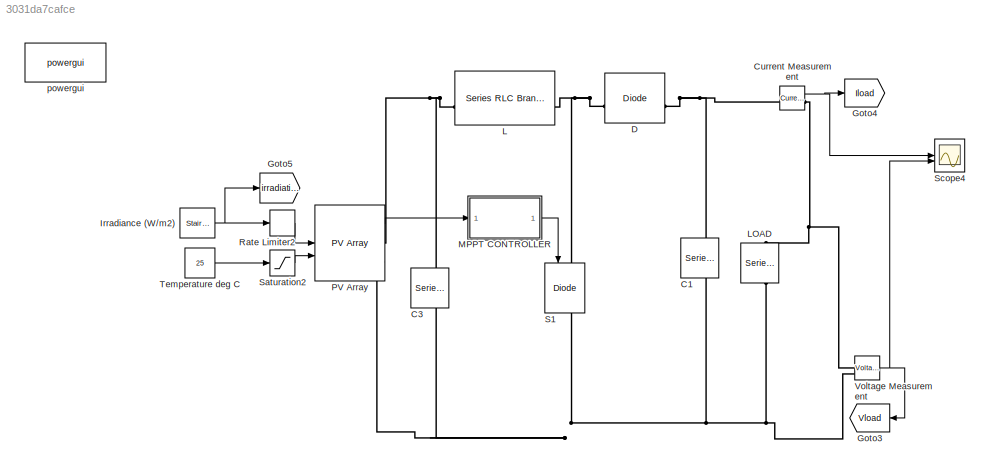
MODEL slx_3031da7cafce
KIND model
CONFIG AbsTol = auto
CONFIG EnableMultiTasking = off
CONFIG FixedStep = auto
CONFIG MaxStep = auto
CONFIG MinStep = auto
CONFIG PreLoadFcn = Ts_Power=50e-6;\nTs_Control=100e-6;
CONFIG RelTol = 1e-3
CONFIG SampleTimeConstraint = Unconstrained
CONFIG SolverName = VariableStepAuto
CONFIG StartTime = 0.0
CONFIG StopTime = 10.0
BLOCK [Reference] C1  REF=spsSeriesRLCBranchLib/Series RLC Branch
  LibrarySourceBlock = sps_lib/Passives/Series RLC Branch
  NameLocation = left
  SourceBlock = spsSeriesRLCBranchLib/Series RLC Branch
  SourceType = Series RLC Branch
BLOCK [Reference] C3  REF=spsSeriesRLCBranchLib/Series RLC Branch
  LibrarySourceBlock = sps_lib/Passives/Series RLC Branch
  NameLocation = left
  SourceBlock = spsSeriesRLCBranchLib/Series RLC Branch
  SourceType = Series RLC Branch
BLOCK [Reference] Current Measurement  REF=spsCurrentMeasurementLib/Current Measurement
  LibrarySourceBlock = sps_lib/Sensors and Measurements/Current Measurement
  SourceBlock = spsCurrentMeasurementLib/Current Measurement
  SourceType = Current Measurement
  UserDataPersistent = on
BLOCK [Reference] D  REF=spsDiodeLib/Diode
  LibrarySourceBlock = sps_lib/Power Electronics/Diode
  SourceBlock = spsDiodeLib/Diode
  SourceType = Diode
BLOCK [Goto] Goto3
  GotoTag = Vload
  TagVisibility = global
BLOCK [Goto] Goto4
  GotoTag = Iload
  TagVisibility = global
BLOCK [Goto] Goto5
  GotoTag = irradiation
  TagVisibility = global
BLOCK [Reference] Irradiance (W//m2)  REF=spsStairGeneratorLib/Stair
Generator
  LibrarySourceBlock = sps_lib/Sources/Signal Generator Sources/Stair\nGenerator
  NameLocation = top
  SourceBlock = spsStairGeneratorLib/Stair\nGenerator
  SourceType = Stair Generator
BLOCK [Reference] L  REF=spsSeriesRLCBranchLib/Series RLC Branch
  LibrarySourceBlock = sps_lib/Passives/Series RLC Branch
  SourceBlock = spsSeriesRLCBranchLib/Series RLC Branch
  SourceType = Series RLC Branch
BLOCK [Reference] LOAD  REF=spsSeriesRLCBranchLib/Series RLC Branch
  LibrarySourceBlock = sps_lib/Passives/Series RLC Branch
  NameLocation = left
  SourceBlock = spsSeriesRLCBranchLib/Series RLC Branch
  SourceType = Series RLC Branch
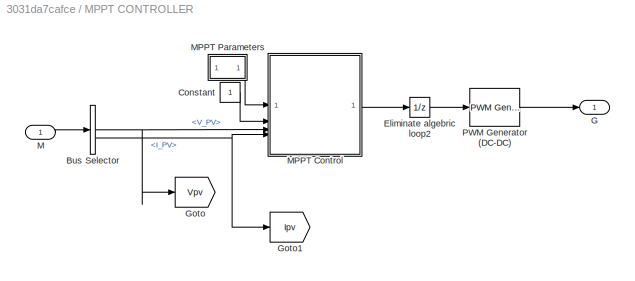
BLOCK [SubSystem] MPPT CONTROLLER
BLOCK [BusSelector] MPPT CONTROLLER/Bus Selector
  OutputSignals = V_PV,I_PV
BLOCK [Constant] MPPT CONTROLLER/Constant
BLOCK [UnitDelay] MPPT CONTROLLER/Eliminate algebric loop2
  HasFrameUpgradeWarning = on
  InitialCondition = 0.485
  NameLocation = top
  SampleTime = Ts_Control
BLOCK [Outport] MPPT CONTROLLER/G
  VectorParamsAs1DForOutWhenUnconnected = off
BLOCK [Goto] MPPT CONTROLLER/Goto
  GotoTag = Vpv
  TagVisibility = global
BLOCK [Goto] MPPT CONTROLLER/Goto1
  GotoTag = Ipv
  TagVisibility = global
BLOCK [Inport] MPPT CONTROLLER/M
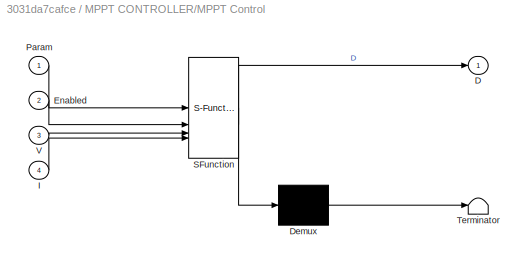
BLOCK [SubSystem] MPPT CONTROLLER/MPPT Control  
  ErrorFcn = Stateflow.Translate.translate
  NameLocation = top
  PermitHierarchicalResolution = ExplicitOnly
  SFBlockType = MATLAB Function
  TreatAsAtomicUnit = on
BLOCK [Demux] MPPT CONTROLLER/MPPT Control  / Demux 
  Outputs = 1
BLOCK [S-Function] MPPT CONTROLLER/MPPT Control  / SFunction 
  EnableBusSupport = on
  FunctionName = sf_sfun
  PortCounts = [4 2]
  SFcnIsStateOwnerBlock = off
  SFunctionDeploymentMode = off
  Tag = Stateflow S-Function 4
BLOCK [Terminator] MPPT CONTROLLER/MPPT Control  / Terminator 
BLOCK [Outport] MPPT CONTROLLER/MPPT Control  /D
  VectorParamsAs1DForOutWhenUnconnected = off
BLOCK [Inport] MPPT CONTROLLER/MPPT Control  /Enabled
  Port = 2
BLOCK [Inport] MPPT CONTROLLER/MPPT Control  /I
  Port = 4
BLOCK [Inport] MPPT CONTROLLER/MPPT Control  /Param
BLOCK [Inport] MPPT CONTROLLER/MPPT Control  /V
  Port = 3
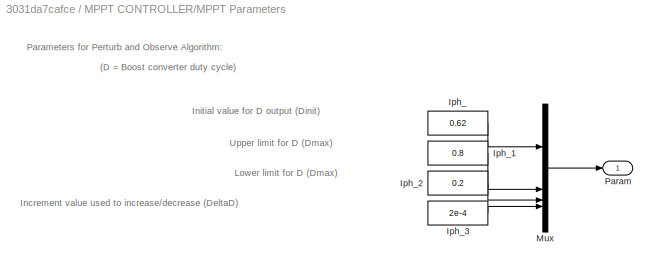
BLOCK [SubSystem] MPPT CONTROLLER/MPPT Parameters
  NameLocation = top
BLOCK [Constant] MPPT CONTROLLER/MPPT Parameters/Iph_
  Value = 0.62
BLOCK [Constant] MPPT CONTROLLER/MPPT Parameters/Iph_1
  Value = 0.8
BLOCK [Constant] MPPT CONTROLLER/MPPT Parameters/Iph_2
  Value = 0.2
BLOCK [Constant] MPPT CONTROLLER/MPPT Parameters/Iph_3
  Value = 2e-4
BLOCK [Mux] MPPT CONTROLLER/MPPT Parameters/Mux
  DisplayOption = bar
BLOCK [Outport] MPPT CONTROLLER/MPPT Parameters/Param
  VectorParamsAs1DForOutWhenUnconnected = off
BLOCK [Reference] MPPT CONTROLLER/PWM Generator (DC-DC)  REF=spsPWMGeneratorDCDCLib/PWM Generator
(DC-DC)
  LibrarySourceBlock = sps_lib/Power Electronics/Power Electronics Control/PWM Generator\n(DC-DC)
  SourceBlock = spsPWMGeneratorDCDCLib/PWM Generator\n(DC-DC)
  SourceType = PWM Generator (DC-DC)
BLOCK [Reference] PV Array  REF=spsPVArrayLib/PV Array
  LibrarySourceBlock = sps_lib/Sources/PV Array
  SourceBlock = spsPVArrayLib/PV Array
  SourceType = PV array
BLOCK [RateLimiter] Rate Limiter2
  FallingSlewLimit = -8000
  InitialCondition = 1000
  NameLocation = top
  RisingSlewLimit = 8000
  SampleTimeMode = inherited
BLOCK [Reference] S1  REF=spsIGBTDiodeLib/IGBT//Diode
  LibrarySourceBlock = sps_lib/Power Electronics/IGBT//Diode
  NameLocation = left
  SourceBlock = spsIGBTDiodeLib/IGBT//Diode
  SourceType = IGBT/Diode
BLOCK [Saturate] Saturation2
  LowerLimit = 5
  UpperLimit = 55
BLOCK [Scope] Scope4
  Floating = off
  NumInputPorts = 2
  ScopeSpecificationString = Simulink.scopes.TimeScopeBlockCfg('CurrentConfiguration', extmgr.ConfigurationSet(extmgr.Configuration('Core','General UI',true),extmgr.Configuration('Core','Source UI',true),extmgr.Configuration('Sources','WiredSimulink',true,'DataLoggingVariableName','ScopeData1'),extmgr.Configuration('Visuals','Time Domain',true,'SerializedDisplays',{struct('MinYLimReal','-1.83087','MaxYLimReal','16.47801','YLa...<+2080ch>
BLOCK [Constant] Temperature deg C
  Value = 25
BLOCK [Reference] Voltage Measurement  REF=spsVoltageMeasurementLib/Voltage Measurement
  LibrarySourceBlock = sps_lib/Sensors and Measurements/Voltage Measurement
  SourceBlock = spsVoltageMeasurementLib/Voltage Measurement
  SourceType = Voltage Measurement
  UserDataPersistent = on
BLOCK [Reference] powergui  REF=sps_lib/powergui
  Priority = 1
  SourceBlock = sps_lib/powergui
  SourceType = PSB option menu block
ANNOTATION MPPT CONTROLLER/MPPT Parameters: (D = Boost converter duty cycle)
ANNOTATION MPPT CONTROLLER/MPPT Parameters: Increment value used to increase/decrease (DeltaD)
ANNOTATION MPPT CONTROLLER/MPPT Parameters: Initial value for D output (Dinit)
ANNOTATION MPPT CONTROLLER/MPPT Parameters: Lower limit for D (Dmax)
ANNOTATION MPPT CONTROLLER/MPPT Parameters: Parameters for Perturb and Observe Algorithm:
ANNOTATION MPPT CONTROLLER/MPPT Parameters: Upper limit for D (Dmax)
NET Current Measurement:1 -> Goto4:1, Scope4:1
NET Irradiance (W//m2):1 -> Goto5:1, Rate Limiter2:1
NET MPPT CONTROLLER/Bus Selector:1 -> MPPT CONTROLLER/Goto:1, MPPT CONTROLLER/MPPT Control  :3
NET MPPT CONTROLLER/Bus Selector:2 -> MPPT CONTROLLER/Goto1:1, MPPT CONTROLLER/MPPT Control  :4
LINE MPPT CONTROLLER/Constant:1 -> MPPT CONTROLLER/MPPT Control  :2
LINE MPPT CONTROLLER/Eliminate algebric loop2:1 -> MPPT CONTROLLER/PWM Generator (DC-DC):1
LINE MPPT CONTROLLER/M:1 -> MPPT CONTROLLER/Bus Selector:1
LINE MPPT CONTROLLER/MPPT Control  :1 -> MPPT CONTROLLER/Eliminate algebric loop2:1
LINE MPPT CONTROLLER/MPPT Parameters/Iph_1:1 -> MPPT CONTROLLER/MPPT Parameters/Mux:2
LINE MPPT CONTROLLER/MPPT Parameters/Iph_2:1 -> MPPT CONTROLLER/MPPT Parameters/Mux:3
LINE MPPT CONTROLLER/MPPT Parameters/Iph_3:1 -> MPPT CONTROLLER/MPPT Parameters/Mux:4
LINE MPPT CONTROLLER/MPPT Parameters/Iph_:1 -> MPPT CONTROLLER/MPPT Parameters/Mux:1
LINE MPPT CONTROLLER/MPPT Parameters/Mux:1 -> MPPT CONTROLLER/MPPT Parameters/Param:1
LINE MPPT CONTROLLER/MPPT Parameters:1 -> MPPT CONTROLLER/MPPT Control  :1
LINE MPPT CONTROLLER/PWM Generator (DC-DC):1 -> MPPT CONTROLLER/G:1
LINE MPPT CONTROLLER:1 -> S1:1
LINE PV Array:1 -> MPPT CONTROLLER:1
LINE Rate Limiter2:1 -> PV Array:1
LINE Saturation2:1 -> PV Array:2
LINE Temperature deg C:1 -> Saturation2:1
NET Voltage Measurement:1 -> Goto3:1, Scope4:2
PNET net1: C1:LConn1 -- Current Measurement:LConn1 -- D:RConn1
PNET net2: C1:RConn1 -- C3:RConn1 -- LOAD:RConn1 -- PV Array:RConn2 -- S1:RConn1 -- Voltage Measurement:LConn2
PNET net3: C3:LConn1 -- L:LConn1 -- PV Array:RConn1
PNET net4: Current Measurement:RConn1 -- LOAD:LConn1 -- Voltage Measurement:LConn1
PNET net5: D:LConn1 -- L:RConn1 -- S1:LConn1
note: NET lines group one-source signal fan-out (src -> all destinations, sorted); 1:1 wires keep LINE; PNET lines group multi-terminal physical nets as a canonical sorted terminal list (undirected conserving connections); 2-terminal nets keep the pairwise PLINE form
CHART MPPT
CONTROLLER/MPPT Control   states=1 transitions=1
  STATE_LABEL 'eML_blk_kernel()'
  STATE_LABEL 'SCRIPT:\nfunction D  = PandO(Param, Enabled, V, I)\n\n% MPPT controller based on the Perturb & Observe algorithm.\n\n% D output = Duty cycle of the boost converter (value between 0 and 1)\n%\n% Enabled input = 1 to enable the MPPT controller\n% V input = PV array terminal voltage (V)\n% I input = PV array current (A)\n%\n% Param input:\nDinit = Param(1);  %Initial value for D output\nDmax = Param(2);   %Maximu...<+678ch>'
CHART  states=0 transitions=0
